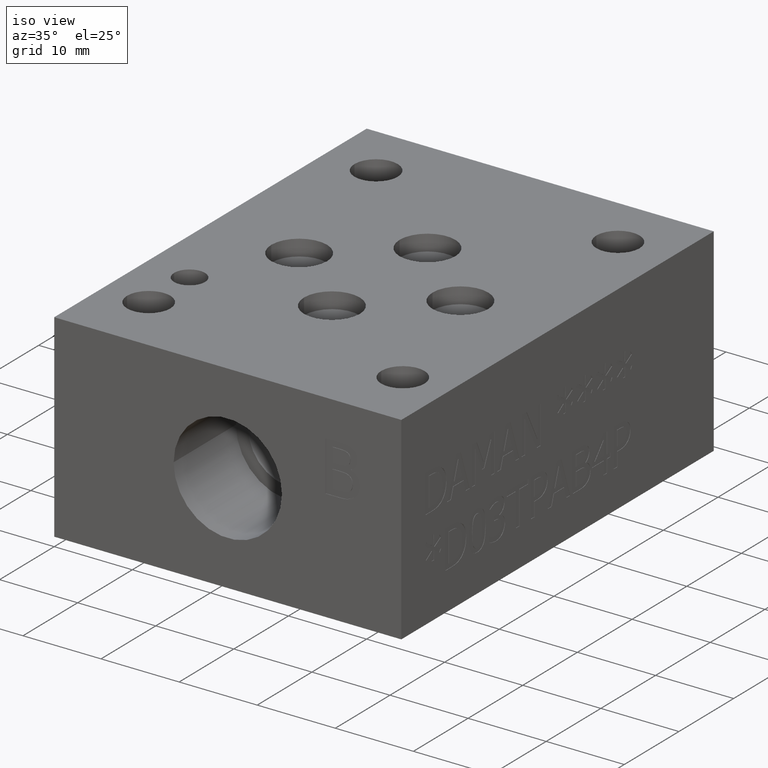
[diagram: clean part render]
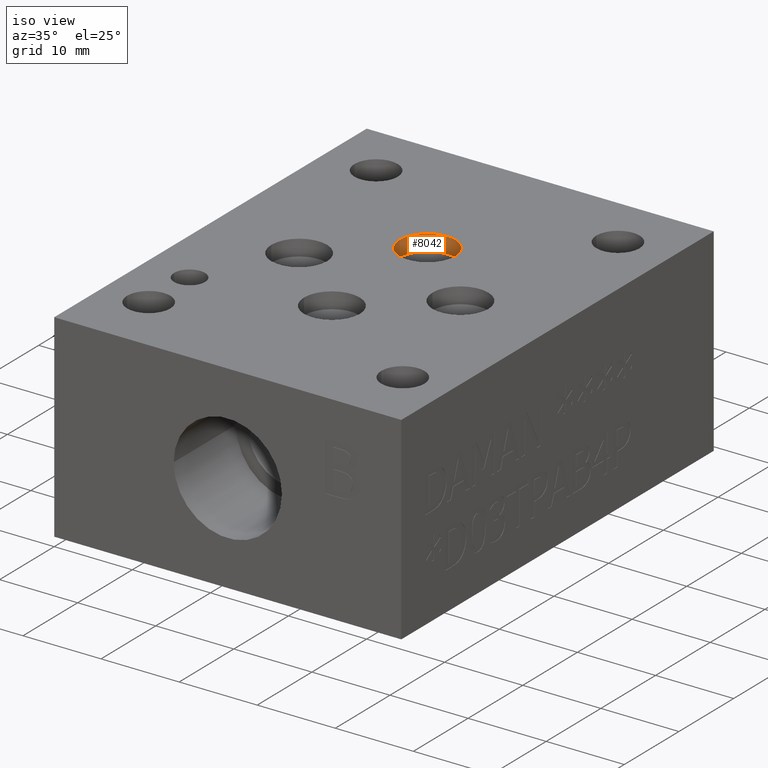
[diagram: same view with one face highlighted and labeled with its STEP entity id]
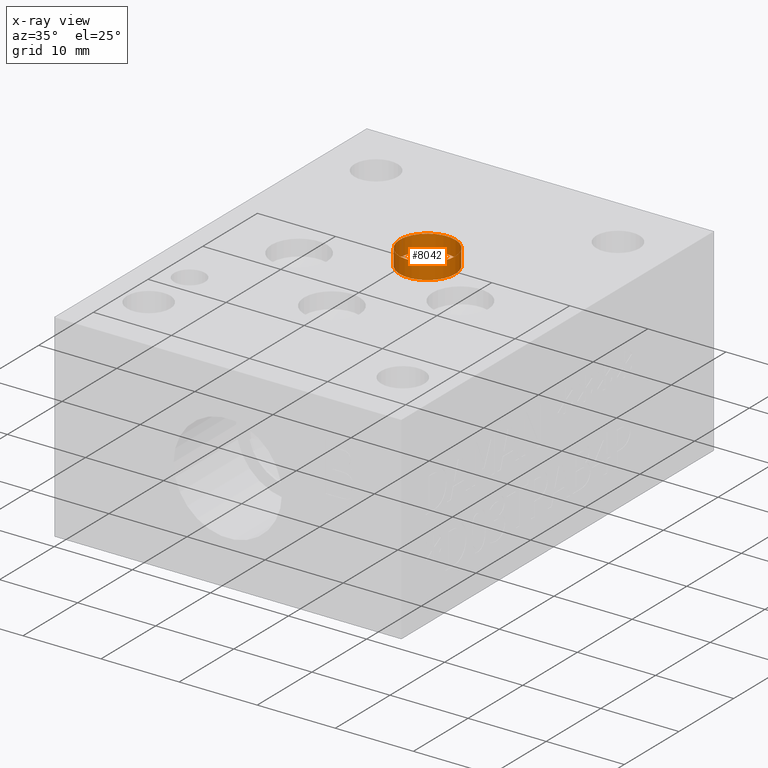
[diagram: x-ray of the same camera — body ghosted, the highlighted face saturated]
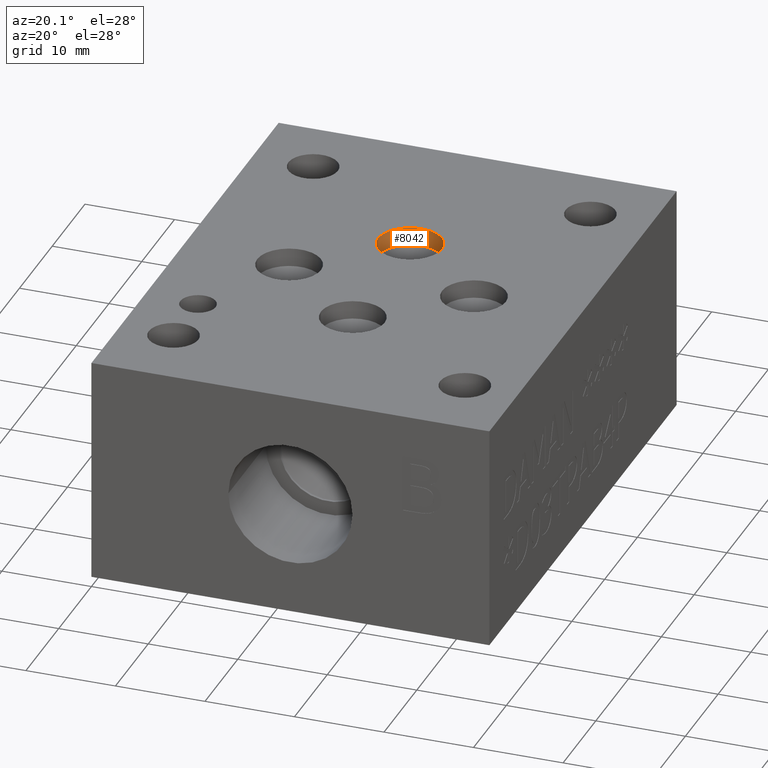
[diagram: same view with one face highlighted and labeled with its STEP entity id]
A machine part, iso view. The second image highlights one B-rep face of the part: STEP entity #8042.
The next image is the same camera in x-ray: the body ghosted, the highlighted face saturated — about 0% of this face is hidden behind the body in this view.
A second angle (auxiliary view) of the same face is appended — the face is thin or edge-on in the first view.
In plain terms, the highlighted cylindrical surface (bore or boss wall) has radius 3.5687 mm, axis along (0, 0, 1).
Its self-contained STEP definition (entity closure, byte-faithful):
#34=CYLINDRICAL_SURFACE('',#8425,3.5687);
#97=CIRCLE('',#8424,3.5687);
#98=CIRCLE('',#8426,3.5687);
#849=FACE_OUTER_BOUND('',#1314,.T.);
#1314=EDGE_LOOP('',(#7142,#7143,#7144,#7145));
#2175=LINE('',#13482,#3023);
#3023=VECTOR('',#9996,3.5687);
#3931=VERTEX_POINT('',#13475);
#3933=VERTEX_POINT('',#13480);
#5011=EDGE_CURVE('',#3931,#3931,#97,.T.);
#5013=EDGE_CURVE('',#3933,#3933,#98,.T.);
#5014=EDGE_CURVE('',#3933,#3931,#2175,.T.);
#7142=ORIENTED_EDGE('',*,*,#5013,.F.);
#7143=ORIENTED_EDGE('',*,*,#5014,.T.);
#7144=ORIENTED_EDGE('',*,*,#5011,.F.);
#7145=ORIENTED_EDGE('',*,*,#5014,.F.);
#8042=ADVANCED_FACE('',(#849),#34,.F.);
#8424=AXIS2_PLACEMENT_3D('',#13476,#9989,#9990);
#8425=AXIS2_PLACEMENT_3D('',#13479,#9992,#9993);
#8426=AXIS2_PLACEMENT_3D('',#13481,#9994,#9995);
#9989=DIRECTION('center_axis',(0.,0.,1.));
#9990=DIRECTION('ref_axis',(1.,0.,0.));
#9992=DIRECTION('center_axis',(0.,0.,1.));
#9993=DIRECTION('ref_axis',(1.,0.,0.));
#9994=DIRECTION('center_axis',(0.,0.,-1.));
#9995=DIRECTION('ref_axis',(1.,0.,0.));
#9996=DIRECTION('',(0.,0.,-1.));
#13475=CARTESIAN_POINT('',(18.6563,36.5252,23.33961));
#13476=CARTESIAN_POINT('Origin',(22.225,36.5252,23.33961));
#13479=CARTESIAN_POINT('Origin',(22.225,36.5252,24.369805));
#13480=CARTESIAN_POINT('',(18.6563,36.5252,25.4));
#13481=CARTESIAN_POINT('Origin',(22.225,36.5252,25.4));
#13482=CARTESIAN_POINT('',(18.6563,36.5252,24.369805));